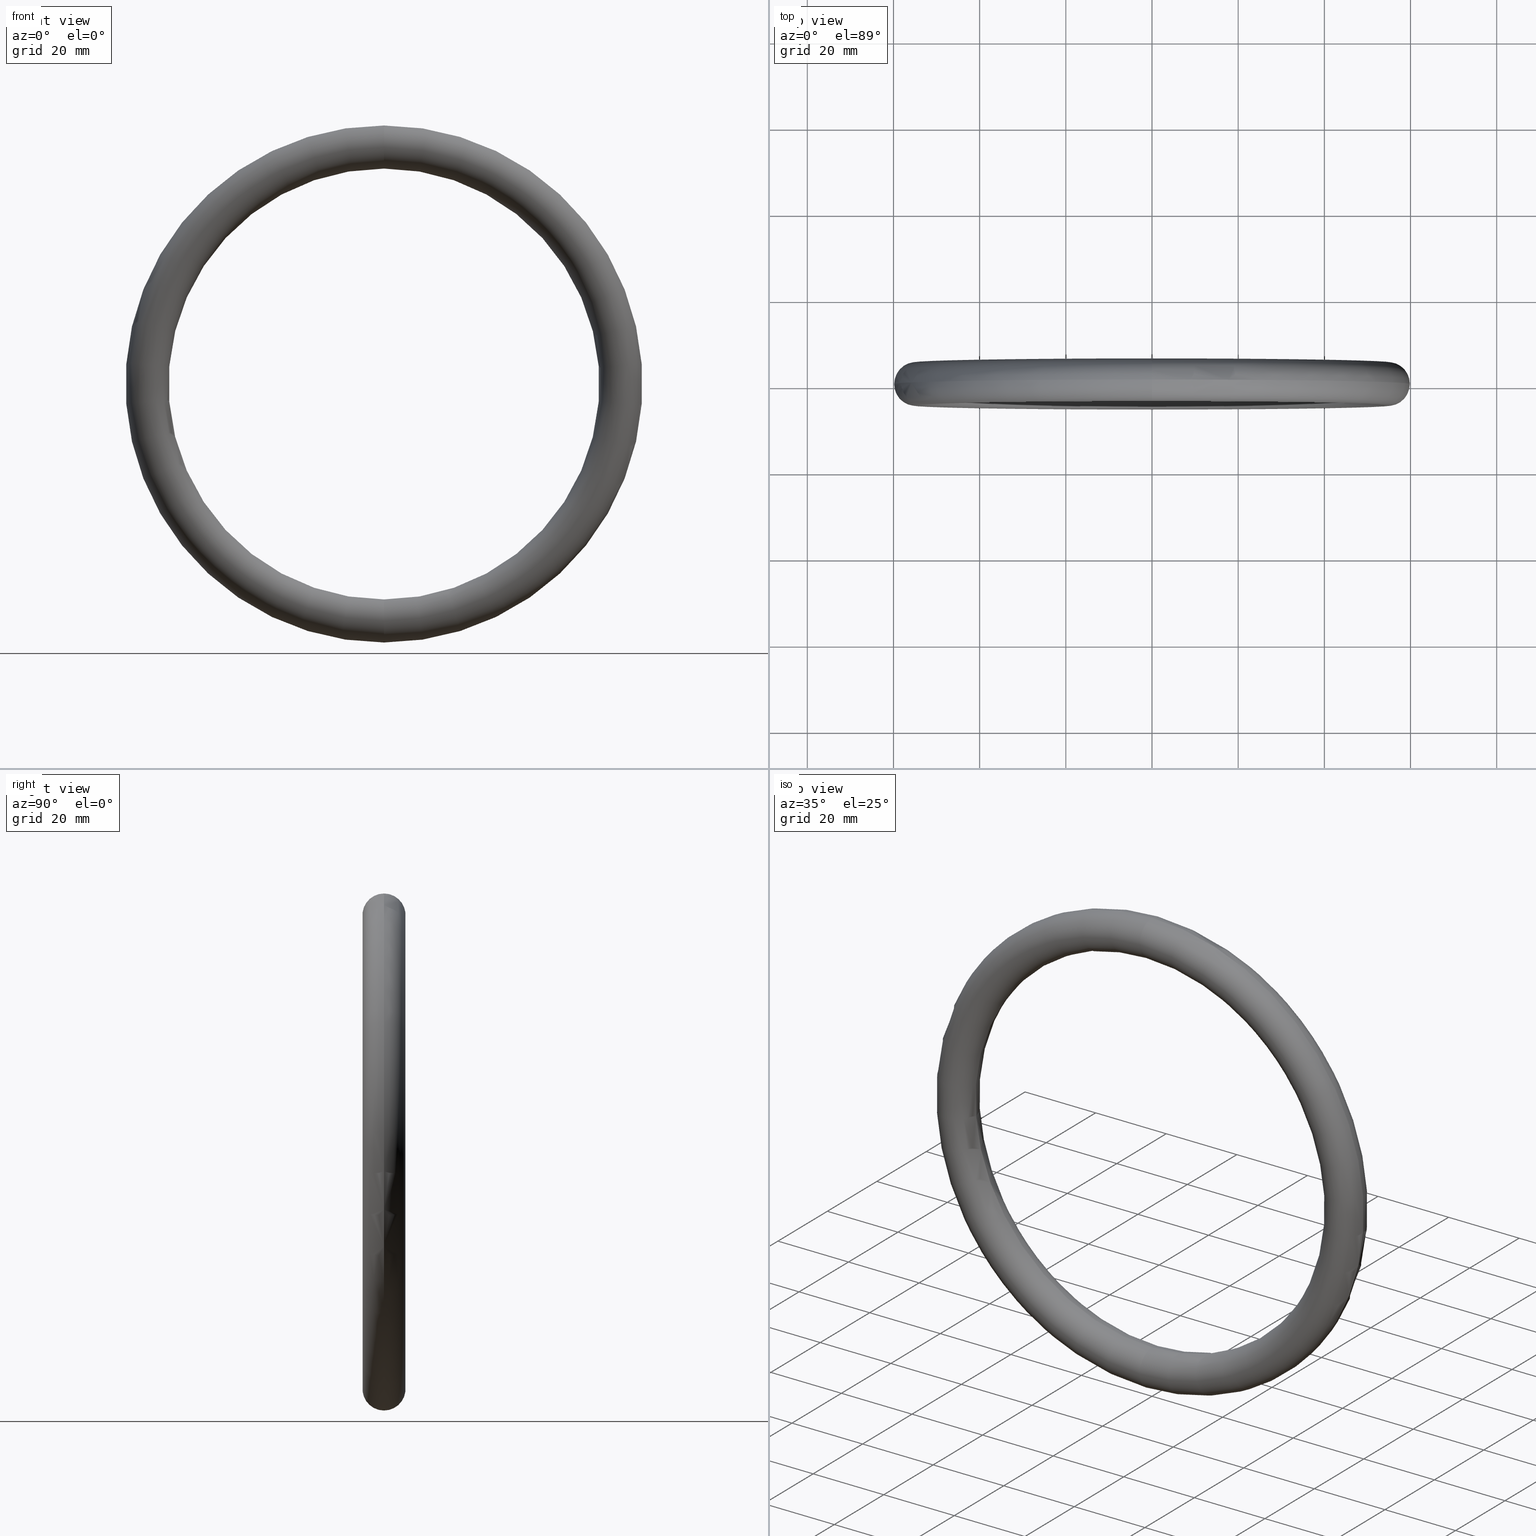
[diagram: canonical four-view strip — front | top / right | iso, engineering-drawing reading convention]
A machine part, canonical four-view strip (front | top / right | iso — engineering-drawing reading convention). The complete STEP part file that produces these views, byte-faithful:
ISO-10303-21;
HEADER;
FILE_DESCRIPTION (( 'STEP AP203' ),
    '1' );
FILE_NAME ('50380-240.step',
    '2021-04-26T12:00:39',
    ( '' ),
    ( '' ),
    'SwSTEP 2.0',
    'SolidWorks 2018',
    '' );
FILE_SCHEMA (( 'CONFIG_CONTROL_DESIGN' ));
ENDSEC;

DATA;
#1 = COORDINATED_UNIVERSAL_TIME_OFFSET ( 1, 0, .AHEAD. ) ;
#2 = EDGE_LOOP ( 'NONE', ( #211, #165, #230, #154 ) ) ;
#3 = CIRCLE ( 'NONE', #161, 4.999999999999997335 ) ;
#4 = LOCAL_TIME ( 14, 0, 39.00000000000000000, #1 ) ;
#5 = PRODUCT_DEFINITION ( 'UNKNOWN', '', #34, #141 ) ;
#6 = AXIS2_PLACEMENT_3D ( 'NONE', #130, #202, #54 ) ;
#7 = APPROVAL_ROLE ( '' ) ;
#8 = APPROVAL_STATUS ( 'not_yet_approved' ) ;
#9 = APPROVAL_PERSON_ORGANIZATION ( #100, #175, #29 ) ;
#10 = APPLICATION_PROTOCOL_DEFINITION ( 'international standard', 'config_control_design', 1994, #33 ) ;
#11 = DIRECTION ( 'NONE',  ( -0.000000000000000000, -1.000000000000000000, -0.000000000000000000 ) ) ;
#12 = CC_DESIGN_APPROVAL ( #105, ( #5 ) ) ;
#13 = CALENDAR_DATE ( 2021, 26, 4 ) ;
#14 = APPROVAL ( #8, 'UNSPECIFIED' ) ;
#15 = COORDINATED_UNIVERSAL_TIME_OFFSET ( 1, 0, .AHEAD. ) ;
#16 = CC_DESIGN_DATE_AND_TIME_ASSIGNMENT ( #37, #72, ( #5 ) ) ;
#17 = LOCAL_TIME ( 14, 0, 39.00000000000000000, #81 ) ;
#18 = AXIS2_PLACEMENT_3D ( 'NONE', #224, #93, #51 ) ;
#19 = PERSON_AND_ORGANIZATION ( #137, #26 ) ;
#20 = EDGE_LOOP ( 'NONE', ( #39, #152, #143, #210 ) ) ;
#21 = PRODUCT_DEFINITION_SHAPE ( 'NONE', 'NONE',  #113 ) ;
#22 = CARTESIAN_POINT ( 'NONE',  ( 0.000000000000000000, 0.000000000000000000, 0.000000000000000000 ) ) ;
#23 = CARTESIAN_POINT ( 'NONE',  ( 6.735557395310442615E-15, 0.000000000000000000, 55.00000000000000000 ) ) ;
#24 = CC_DESIGN_APPROVAL ( #191, ( #259 ) ) ;
#25 = PERSON_AND_ORGANIZATION ( #137, #26 ) ;
#26 = ORGANIZATION ( 'UNSPECIFIED', 'UNSPECIFIED', '' ) ;
#27 = CC_DESIGN_PERSON_AND_ORGANIZATION_ASSIGNMENT ( #109, #126, ( #5 ) ) ;
#28 = EDGE_CURVE ( 'NONE', #44, #236, #174, .T. ) ;
#29 = APPROVAL_ROLE ( '' ) ;
#30 = DATE_TIME_ROLE ( 'classification_date' ) ;
#31 = APPROVAL_DATE_TIME ( #233, #105 ) ;
#32 = CARTESIAN_POINT ( 'NONE',  ( 0.000000000000000000, 6.123233995736763324E-16, 0.000000000000000000 ) ) ;
#33 = APPLICATION_CONTEXT ( 'configuration controlled 3d designs of mechanical parts and assemblies' ) ;
#34 = PRODUCT_DEFINITION_FORMATION_WITH_SPECIFIED_SOURCE ( 'ANY', '', #87, .NOT_KNOWN. ) ;
#35 = LOCAL_TIME ( 14, 0, 39.00000000000000000, #250 ) ;
#36 = CC_DESIGN_APPROVAL ( #56, ( #62 ) ) ;
#37 = DATE_AND_TIME ( #102, #63 ) ;
#38 = COORDINATED_UNIVERSAL_TIME_OFFSET ( 1, 0, .AHEAD. ) ;
#39 = ORIENTED_EDGE ( 'NONE', *, *, #28, .F. ) ;
#40 = CC_DESIGN_PERSON_AND_ORGANIZATION_ASSIGNMENT ( #206, #268, ( #34 ) ) ;
#41 =( GEOMETRIC_REPRESENTATION_CONTEXT ( 3 ) GLOBAL_UNCERTAINTY_ASSIGNED_CONTEXT ( ( #121 ) ) GLOBAL_UNIT_ASSIGNED_CONTEXT ( ( #151, #199, #76 ) ) REPRESENTATION_CONTEXT ( 'NONE', 'WORKASPACE' ) );
#42 = DIRECTION ( 'NONE',  ( 1.000000000000000000, 0.000000000000000000, -1.224646799147353207E-16 ) ) ;
#43 = APPROVAL_DATE_TIME ( #128, #56 ) ;
#44 = VERTEX_POINT ( 'NONE', #244 ) ;
#45 = CC_DESIGN_PERSON_AND_ORGANIZATION_ASSIGNMENT ( #91, #205, ( #259 ) ) ;
#46 = DIRECTION ( 'NONE',  ( 1.000000000000000000, 0.000000000000000000, -1.224646799147353207E-16 ) ) ;
#47 = AXIS2_PLACEMENT_3D ( 'NONE', #97, #95, #246 ) ;
#48 = CIRCLE ( 'NONE', #234, 60.00000000000000000 ) ;
#49 = DIRECTION ( 'NONE',  ( 0.000000000000000000, 0.000000000000000000, -1.000000000000000000 ) ) ;
#50 = DIRECTION ( 'NONE',  ( -0.000000000000000000, -1.000000000000000000, -0.000000000000000000 ) ) ;
#51 = DIRECTION ( 'NONE',  ( 1.000000000000000000, 0.000000000000000000, 0.000000000000000000 ) ) ;
#52 = DIRECTION ( 'NONE',  ( -1.000000000000000000, 0.000000000000000000, 0.000000000000000000 ) ) ;
#53 = COORDINATED_UNIVERSAL_TIME_OFFSET ( 1, 0, .AHEAD. ) ;
#54 = DIRECTION ( 'NONE',  ( 0.000000000000000000, 0.000000000000000000, -1.000000000000000000 ) ) ;
#55 = SECURITY_CLASSIFICATION_LEVEL ( 'unclassified' ) ;
#56 = APPROVAL ( #226, 'UNSPECIFIED' ) ;
#57 = DATE_AND_TIME ( #238, #17 ) ;
#58 = FACE_OUTER_BOUND ( 'NONE', #20, .T. ) ;
#59 = VERTEX_POINT ( 'NONE', #98 ) ;
#60 = DATE_AND_TIME ( #13, #243 ) ;
#61 = CIRCLE ( 'NONE', #214, 4.999999999999997335 ) ;
#62 = PRODUCT_DEFINITION_FORMATION_WITH_SPECIFIED_SOURCE ( 'ANY', '', #251, .NOT_KNOWN. ) ;
#63 = LOCAL_TIME ( 14, 0, 39.00000000000000000, #173 ) ;
#64 = CIRCLE ( 'NONE', #269, 60.00000000000000000 ) ;
#65 = CC_DESIGN_PERSON_AND_ORGANIZATION_ASSIGNMENT ( #258, #262, ( #62 ) ) ;
#66 = DIRECTION ( 'NONE',  ( -1.224646799147352714E-16, 0.000000000000000000, -1.000000000000000000 ) ) ;
#67 = LOCAL_TIME ( 14, 0, 39.00000000000000000, #88 ) ;
#68 = DIRECTION ( 'NONE',  ( -1.224646799147352714E-16, 0.000000000000000000, -1.000000000000000000 ) ) ;
#69 = CARTESIAN_POINT ( 'NONE',  ( 6.735557395310442615E-15, 0.000000000000000000, 55.00000000000000000 ) ) ;
#70 = LOCAL_TIME ( 14, 0, 39.00000000000000000, #15 ) ;
#71 = FACE_OUTER_BOUND ( 'NONE', #182, .T. ) ;
#72 = DATE_TIME_ROLE ( 'creation_date' ) ;
#73 = PERSON_AND_ORGANIZATION_ROLE ( 'creator' ) ;
#74 = MECHANICAL_CONTEXT ( 'NONE', #33, 'mechanical' ) ;
#75 = PERSON_AND_ORGANIZATION ( #137, #26 ) ;
#76 =( NAMED_UNIT ( * ) SI_UNIT ( $, .STERADIAN. ) SOLID_ANGLE_UNIT ( ) );
#77 = DATE_TIME_ROLE ( 'creation_date' ) ;
#78 = APPROVAL_STATUS ( 'not_yet_approved' ) ;
#79 = CC_DESIGN_DATE_AND_TIME_ASSIGNMENT ( #86, #207, ( #259 ) ) ;
#80 = APPROVAL_ROLE ( '' ) ;
#81 = COORDINATED_UNIVERSAL_TIME_OFFSET ( 1, 0, .AHEAD. ) ;
#82 = ORIENTED_EDGE ( 'NONE', *, *, #115, .F. ) ;
#83 = EDGE_CURVE ( 'NONE', #236, #59, #239, .T. ) ;
#84 = ADVANCED_FACE ( 'NONE', ( #104 ), #186, .T. ) ;
#85 = DATE_AND_TIME ( #185, #70 ) ;
#86 = DATE_AND_TIME ( #136, #35 ) ;
#87 = PRODUCT ( '50380-240', '50380-240', '', ( #266 ) ) ;
#88 = COORDINATED_UNIVERSAL_TIME_OFFSET ( 1, 0, .AHEAD. ) ;
#89 = DIRECTION ( 'NONE',  ( 0.000000000000000000, 0.000000000000000000, -1.000000000000000000 ) ) ;
#90 = DIRECTION ( 'NONE',  ( 0.000000000000000000, 0.000000000000000000, -1.000000000000000000 ) ) ;
#91 = PERSON_AND_ORGANIZATION ( #137, #26 ) ;
#92 = CC_DESIGN_PERSON_AND_ORGANIZATION_ASSIGNMENT ( #112, #110, ( #270 ) ) ;
#93 = DIRECTION ( 'NONE',  ( 0.000000000000000000, 0.000000000000000000, 1.000000000000000000 ) ) ;
#94 = CARTESIAN_POINT ( 'NONE',  ( 0.000000000000000000, 0.000000000000000000, 0.000000000000000000 ) ) ;
#95 = DIRECTION ( 'NONE',  ( 0.000000000000000000, 0.000000000000000000, 1.000000000000000000 ) ) ;
#96 = ORIENTED_EDGE ( 'NONE', *, *, #106, .F. ) ;
#97 = CARTESIAN_POINT ( 'NONE',  ( 0.000000000000000000, 0.000000000000000000, 0.000000000000000000 ) ) ;
#98 = CARTESIAN_POINT ( 'NONE',  ( 6.123233995736766085E-15, 0.000000000000000000, 50.00000000000000000 ) ) ;
#99 = APPROVAL_ROLE ( '' ) ;
#100 = PERSON_AND_ORGANIZATION ( #137, #26 ) ;
#101 = CALENDAR_DATE ( 2021, 26, 4 ) ;
#102 = CALENDAR_DATE ( 2021, 26, 4 ) ;
#103 = EDGE_CURVE ( 'NONE', #59, #140, #3, .T. ) ;
#104 = FACE_OUTER_BOUND ( 'NONE', #118, .T. ) ;
#105 = APPROVAL ( #108, 'UNSPECIFIED' ) ;
#106 = EDGE_CURVE ( 'NONE', #140, #59, #148, .T. ) ;
#107 = DIRECTION ( 'NONE',  ( 0.000000000000000000, 0.000000000000000000, -1.000000000000000000 ) ) ;
#108 = APPROVAL_STATUS ( 'not_yet_approved' ) ;
#109 = PERSON_AND_ORGANIZATION ( #137, #26 ) ;
#110 = PERSON_AND_ORGANIZATION_ROLE ( 'classification_officer' ) ;
#111 = APPROVAL_STATUS ( 'not_yet_approved' ) ;
#112 = PERSON_AND_ORGANIZATION ( #137, #26 ) ;
#113 = PRODUCT_DEFINITION ( 'UNKNOWN', '', #62, #264 ) ;
#114 = APPROVAL_PERSON_ORGANIZATION ( #178, #105, #263 ) ;
#115 = EDGE_CURVE ( 'NONE', #44, #140, #64, .T. ) ;
#116 = CC_DESIGN_PERSON_AND_ORGANIZATION_ASSIGNMENT ( #267, #242, ( #62 ) ) ;
#117 = COORDINATED_UNIVERSAL_TIME_OFFSET ( 1, 0, .AHEAD. ) ;
#118 = EDGE_LOOP ( 'NONE', ( #82, #237, #227, #170 ) ) ;
#119 = CC_DESIGN_APPROVAL ( #14, ( #270 ) ) ;
#120 = LOCAL_TIME ( 14, 0, 39.00000000000000000, #117 ) ;
#121 = UNCERTAINTY_MEASURE_WITH_UNIT (LENGTH_MEASURE( 1.000000000000000082E-05 ), #151, 'distance_accuracy_value', 'NONE');
#122 = CARTESIAN_POINT ( 'NONE',  ( 0.000000000000000000, 0.000000000000000000, 0.000000000000000000 ) ) ;
#123 = APPROVAL_DATE_TIME ( #60, #175 ) ;
#124 = PERSON_AND_ORGANIZATION ( #137, #26 ) ;
#125 = ADVANCED_FACE ( 'NONE', ( #58 ), #167, .T. ) ;
#126 = PERSON_AND_ORGANIZATION_ROLE ( 'creator' ) ;
#127 = SECURITY_CLASSIFICATION_LEVEL ( 'unclassified' ) ;
#128 = DATE_AND_TIME ( #192, #67 ) ;
#129 = DIRECTION ( 'NONE',  ( -0.000000000000000000, -1.000000000000000000, -0.000000000000000000 ) ) ;
#130 = CARTESIAN_POINT ( 'NONE',  ( 0.000000000000000000, 0.000000000000000000, 0.000000000000000000 ) ) ;
#131 = CARTESIAN_POINT ( 'NONE',  ( 0.000000000000000000, 0.000000000000000000, -50.00000000000000000 ) ) ;
#132 = DIRECTION ( 'NONE',  ( -1.000000000000000000, 0.000000000000000000, 0.000000000000000000 ) ) ;
#133 = PERSON_AND_ORGANIZATION_ROLE ( 'design_owner' ) ;
#134 = AXIS2_PLACEMENT_3D ( 'NONE', #265, #132, #204 ) ;
#135 = PERSON_AND_ORGANIZATION_ROLE ( 'design_supplier' ) ;
#136 = CALENDAR_DATE ( 2021, 26, 4 ) ;
#137 = PERSON ( 'UNSPECIFIED', 'UNSPECIFIED', 'UNSPECIFIED', ('UNSPECIFIED'), ('UNSPECIFIED'), ('UNSPECIFIED') ) ;
#138 = PERSON_AND_ORGANIZATION ( #137, #26 ) ;
#139 = ADVANCED_FACE ( 'NONE', ( #71 ), #222, .T. ) ;
#140 = VERTEX_POINT ( 'NONE', #193 ) ;
#141 = DESIGN_CONTEXT ( 'detailed design', #176, 'design' ) ;
#142 = PERSON_AND_ORGANIZATION ( #137, #26 ) ;
#143 = ORIENTED_EDGE ( 'NONE', *, *, #106, .T. ) ;
#144 = AXIS2_PLACEMENT_3D ( 'NONE', #156, #183, #180 ) ;
#145 = TOROIDAL_SURFACE ( 'NONE', #253, 55.00000000000000000, 4.999999999999997335 ) ;
#146 = DIRECTION ( 'NONE',  ( -0.000000000000000000, -1.000000000000000000, -0.000000000000000000 ) ) ;
#147 = DATE_AND_TIME ( #101, #219 ) ;
#148 = CIRCLE ( 'NONE', #184, 4.999999999999997335 ) ;
#149 = EDGE_CURVE ( 'NONE', #140, #44, #48, .T. ) ;
#150 = CC_DESIGN_DATE_AND_TIME_ASSIGNMENT ( #85, #30, ( #270 ) ) ;
#151 =( LENGTH_UNIT ( ) NAMED_UNIT ( * ) SI_UNIT ( .MILLI., .METRE. ) );
#152 = ORIENTED_EDGE ( 'NONE', *, *, #115, .T. ) ;
#153 = APPLICATION_CONTEXT ( 'configuration controlled 3d designs of mechanical parts and assemblies' ) ;
#154 = ORIENTED_EDGE ( 'NONE', *, *, #166, .T. ) ;
#155 = CC_DESIGN_PERSON_AND_ORGANIZATION_ASSIGNMENT ( #162, #157, ( #251 ) ) ;
#156 = CARTESIAN_POINT ( 'NONE',  ( 0.000000000000000000, 6.123233995736763324E-16, 0.000000000000000000 ) ) ;
#157 = PERSON_AND_ORGANIZATION_ROLE ( 'design_owner' ) ;
#158 = CALENDAR_DATE ( 2021, 26, 4 ) ;
#159 = DIRECTION ( 'NONE',  ( 0.000000000000000000, 0.000000000000000000, 1.000000000000000000 ) ) ;
#160 = CC_DESIGN_PERSON_AND_ORGANIZATION_ASSIGNMENT ( #138, #135, ( #34 ) ) ;
#161 = AXIS2_PLACEMENT_3D ( 'NONE', #23, #46, #68 ) ;
#162 = PERSON_AND_ORGANIZATION ( #137, #26 ) ;
#163 = CLOSED_SHELL ( 'NONE', ( #139, #125, #84, #221 ) ) ;
#164 = LOCAL_TIME ( 14, 0, 39.00000000000000000, #248 ) ;
#165 = ORIENTED_EDGE ( 'NONE', *, *, #103, .F. ) ;
#166 = EDGE_CURVE ( 'NONE', #236, #44, #61, .T. ) ;
#167 = TOROIDAL_SURFACE ( 'NONE', #209, 55.00000000000000000, 4.999999999999997335 ) ;
#168 = CALENDAR_DATE ( 2021, 26, 4 ) ;
#169 = CC_DESIGN_APPROVAL ( #175, ( #113 ) ) ;
#170 = ORIENTED_EDGE ( 'NONE', *, *, #103, .T. ) ;
#171 = DIRECTION ( 'NONE',  ( -0.000000000000000000, -1.000000000000000000, -0.000000000000000000 ) ) ;
#172 = APPROVAL ( #111, 'UNSPECIFIED' ) ;
#173 = COORDINATED_UNIVERSAL_TIME_OFFSET ( 1, 0, .AHEAD. ) ;
#174 = CIRCLE ( 'NONE', #134, 4.999999999999997335 ) ;
#175 = APPROVAL ( #203, 'UNSPECIFIED' ) ;
#176 = APPLICATION_CONTEXT ( 'configuration controlled 3d designs of mechanical parts and assemblies' ) ;
#177 = APPLICATION_PROTOCOL_DEFINITION ( 'international standard', 'config_control_design', 1994, #181 ) ;
#178 = PERSON_AND_ORGANIZATION ( #137, #26 ) ;
#179 = MANIFOLD_SOLID_BREP ( 'Austragung1', #163 ) ;
#180 = DIRECTION ( 'NONE',  ( 0.000000000000000000, 0.000000000000000000, -1.000000000000000000 ) ) ;
#181 = APPLICATION_CONTEXT ( 'configuration controlled 3d designs of mechanical parts and assemblies' ) ;
#182 = EDGE_LOOP ( 'NONE', ( #96, #271, #190, #257 ) ) ;
#183 = DIRECTION ( 'NONE',  ( -0.000000000000000000, -1.000000000000000000, -0.000000000000000000 ) ) ;
#184 = AXIS2_PLACEMENT_3D ( 'NONE', #69, #42, #66 ) ;
#185 = CALENDAR_DATE ( 2021, 26, 4 ) ;
#186 = TOROIDAL_SURFACE ( 'NONE', #6, 55.00000000000000000, 4.999999999999997335 ) ;
#187 = DATE_AND_TIME ( #252, #4 ) ;
#188 = CC_DESIGN_PERSON_AND_ORGANIZATION_ASSIGNMENT ( #231, #73, ( #113 ) ) ;
#189 = APPROVAL_PERSON_ORGANIZATION ( #25, #191, #228 ) ;
#190 = ORIENTED_EDGE ( 'NONE', *, *, #28, .T. ) ;
#191 = APPROVAL ( #78, 'UNSPECIFIED' ) ;
#192 = CALENDAR_DATE ( 2021, 26, 4 ) ;
#193 = CARTESIAN_POINT ( 'NONE',  ( 7.347880794884118356E-15, 0.000000000000000000, 60.00000000000000000 ) ) ;
#194 = APPROVAL_DATE_TIME ( #147, #172 ) ;
#195 = AXIS2_PLACEMENT_3D ( 'NONE', #22, #171, #89 ) ;
#196 = APPLICATION_PROTOCOL_DEFINITION ( 'international standard', 'config_control_design', 1994, #176 ) ;
#197 = APPROVAL_PERSON_ORGANIZATION ( #142, #172, #80 ) ;
#198 = EDGE_CURVE ( 'NONE', #59, #236, #215, .T. ) ;
#199 =( NAMED_UNIT ( * ) PLANE_ANGLE_UNIT ( ) SI_UNIT ( $, .RADIAN. ) );
#200 = CARTESIAN_POINT ( 'NONE',  ( 0.000000000000000000, 0.000000000000000000, 0.000000000000000000 ) ) ;
#201 = CC_DESIGN_DATE_AND_TIME_ASSIGNMENT ( #187, #77, ( #113 ) ) ;
#202 = DIRECTION ( 'NONE',  ( -0.000000000000000000, -1.000000000000000000, -0.000000000000000000 ) ) ;
#203 = APPROVAL_STATUS ( 'not_yet_approved' ) ;
#204 = DIRECTION ( 'NONE',  ( 0.000000000000000000, 0.000000000000000000, 1.000000000000000000 ) ) ;
#205 = PERSON_AND_ORGANIZATION_ROLE ( 'classification_officer' ) ;
#206 = PERSON_AND_ORGANIZATION ( #137, #26 ) ;
#207 = DATE_TIME_ROLE ( 'classification_date' ) ;
#208 = PRODUCT_RELATED_PRODUCT_CATEGORY ( 'detail', '', ( #251 ) ) ;
#209 = AXIS2_PLACEMENT_3D ( 'NONE', #216, #256, #90 ) ;
#210 = ORIENTED_EDGE ( 'NONE', *, *, #83, .F. ) ;
#211 = ORIENTED_EDGE ( 'NONE', *, *, #149, .F. ) ;
#212 = APPROVAL_DATE_TIME ( #235, #14 ) ;
#213 = SHAPE_DEFINITION_REPRESENTATION ( #218, #223 ) ;
#214 = AXIS2_PLACEMENT_3D ( 'NONE', #261, #52, #159 ) ;
#215 = CIRCLE ( 'NONE', #229, 50.00000000000000000 ) ;
#216 = CARTESIAN_POINT ( 'NONE',  ( 0.000000000000000000, 0.000000000000000000, 0.000000000000000000 ) ) ;
#217 = DIRECTION ( 'NONE',  ( 0.000000000000000000, 0.000000000000000000, -1.000000000000000000 ) ) ;
#218 = PRODUCT_DEFINITION_SHAPE ( 'NONE', 'NONE',  #5 ) ;
#219 = LOCAL_TIME ( 14, 0, 39.00000000000000000, #53 ) ;
#220 = CC_DESIGN_SECURITY_CLASSIFICATION ( #259, ( #34 ) ) ;
#221 = ADVANCED_FACE ( 'NONE', ( #260 ), #145, .T. ) ;
#222 = TOROIDAL_SURFACE ( 'NONE', #195, 55.00000000000000000, 4.999999999999997335 ) ;
#223 = ADVANCED_BREP_SHAPE_REPRESENTATION ( '50380-240', ( #179, #18 ), #41 ) ;
#224 = CARTESIAN_POINT ( 'NONE',  ( 0.000000000000000000, 0.000000000000000000, 0.000000000000000000 ) ) ;
#225 = APPROVAL_PERSON_ORGANIZATION ( #19, #14, #7 ) ;
#226 = APPROVAL_STATUS ( 'not_yet_approved' ) ;
#227 = ORIENTED_EDGE ( 'NONE', *, *, #83, .T. ) ;
#228 = APPROVAL_ROLE ( '' ) ;
#229 = AXIS2_PLACEMENT_3D ( 'NONE', #32, #50, #107 ) ;
#230 = ORIENTED_EDGE ( 'NONE', *, *, #198, .T. ) ;
#231 = PERSON_AND_ORGANIZATION ( #137, #26 ) ;
#232 = PRODUCT_RELATED_PRODUCT_CATEGORY ( 'detail', '', ( #87 ) ) ;
#233 = DATE_AND_TIME ( #168, #164 ) ;
#234 = AXIS2_PLACEMENT_3D ( 'NONE', #94, #11, #49 ) ;
#235 = DATE_AND_TIME ( #158, #120 ) ;
#236 = VERTEX_POINT ( 'NONE', #131 ) ;
#237 = ORIENTED_EDGE ( 'NONE', *, *, #166, .F. ) ;
#238 = CALENDAR_DATE ( 2021, 26, 4 ) ;
#239 = CIRCLE ( 'NONE', #144, 50.00000000000000000 ) ;
#240 = CC_DESIGN_SECURITY_CLASSIFICATION ( #270, ( #62 ) ) ;
#241 = APPLICATION_PROTOCOL_DEFINITION ( 'international standard', 'config_control_design', 1994, #153 ) ;
#242 = PERSON_AND_ORGANIZATION_ROLE ( 'design_supplier' ) ;
#243 = LOCAL_TIME ( 14, 0, 39.00000000000000000, #38 ) ;
#244 = CARTESIAN_POINT ( 'NONE',  ( 0.000000000000000000, 0.000000000000000000, -60.00000000000000000 ) ) ;
#245 = DIRECTION ( 'NONE',  ( 0.000000000000000000, 0.000000000000000000, -1.000000000000000000 ) ) ;
#246 = DIRECTION ( 'NONE',  ( 1.000000000000000000, 0.000000000000000000, 0.000000000000000000 ) ) ;
#247 = CC_DESIGN_APPROVAL ( #172, ( #34 ) ) ;
#248 = COORDINATED_UNIVERSAL_TIME_OFFSET ( 1, 0, .AHEAD. ) ;
#249 = APPROVAL_DATE_TIME ( #57, #191 ) ;
#250 = COORDINATED_UNIVERSAL_TIME_OFFSET ( 1, 0, .AHEAD. ) ;
#251 = PRODUCT ( '50380-240', '50380-240', '', ( #74 ) ) ;
#252 = CALENDAR_DATE ( 2021, 26, 4 ) ;
#253 = AXIS2_PLACEMENT_3D ( 'NONE', #200, #129, #245 ) ;
#254 = CC_DESIGN_PERSON_AND_ORGANIZATION_ASSIGNMENT ( #124, #133, ( #87 ) ) ;
#255 = APPROVAL_PERSON_ORGANIZATION ( #75, #56, #99 ) ;
#256 = DIRECTION ( 'NONE',  ( -0.000000000000000000, -1.000000000000000000, -0.000000000000000000 ) ) ;
#257 = ORIENTED_EDGE ( 'NONE', *, *, #198, .F. ) ;
#258 = PERSON_AND_ORGANIZATION ( #137, #26 ) ;
#259 = SECURITY_CLASSIFICATION ( '', '', #55 ) ;
#260 = FACE_OUTER_BOUND ( 'NONE', #2, .T. ) ;
#261 = CARTESIAN_POINT ( 'NONE',  ( 0.000000000000000000, 0.000000000000000000, -55.00000000000000000 ) ) ;
#262 = PERSON_AND_ORGANIZATION_ROLE ( 'creator' ) ;
#263 = APPROVAL_ROLE ( '' ) ;
#264 = DESIGN_CONTEXT ( 'detailed design', #181, 'design' ) ;
#265 = CARTESIAN_POINT ( 'NONE',  ( 0.000000000000000000, 0.000000000000000000, -55.00000000000000000 ) ) ;
#266 = MECHANICAL_CONTEXT ( 'NONE', #153, 'mechanical' ) ;
#267 = PERSON_AND_ORGANIZATION ( #137, #26 ) ;
#268 = PERSON_AND_ORGANIZATION_ROLE ( 'creator' ) ;
#269 = AXIS2_PLACEMENT_3D ( 'NONE', #122, #146, #217 ) ;
#270 = SECURITY_CLASSIFICATION ( '', '', #127 ) ;
#271 = ORIENTED_EDGE ( 'NONE', *, *, #149, .T. ) ;
ENDSEC;
END-ISO-10303-21;
